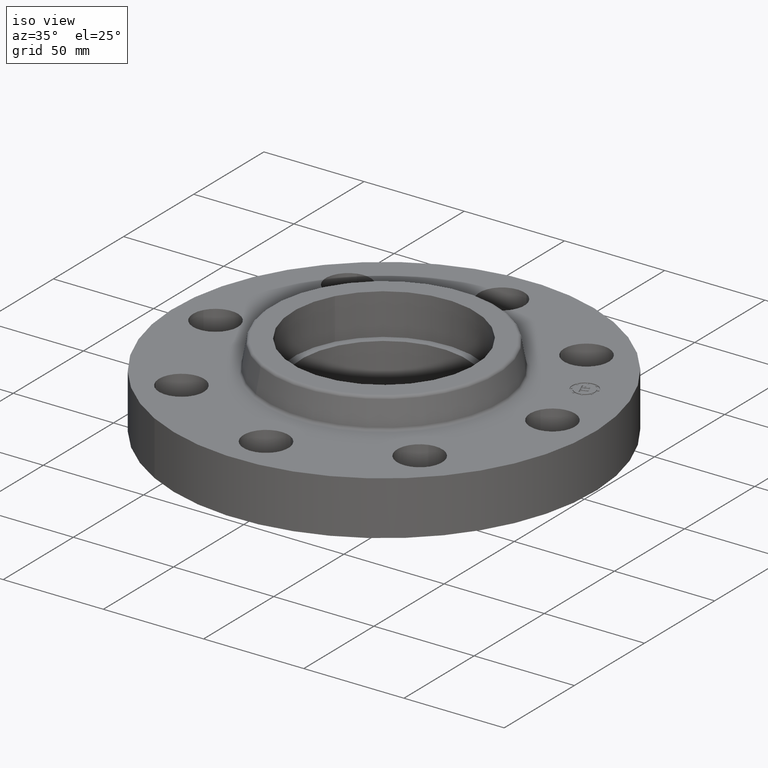
[diagram: clean part render]
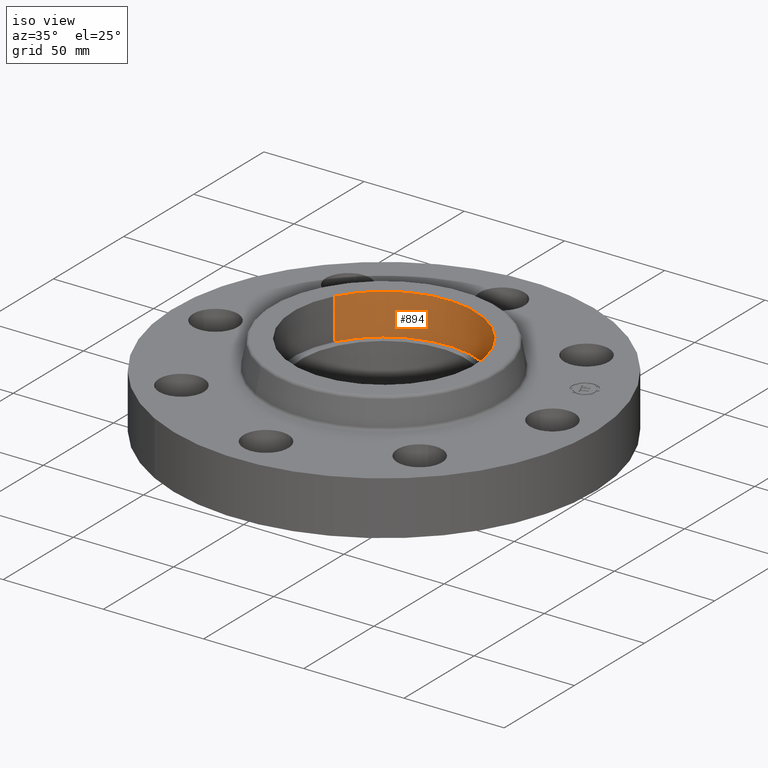
[diagram: same view with one face highlighted and labeled with its STEP entity id]
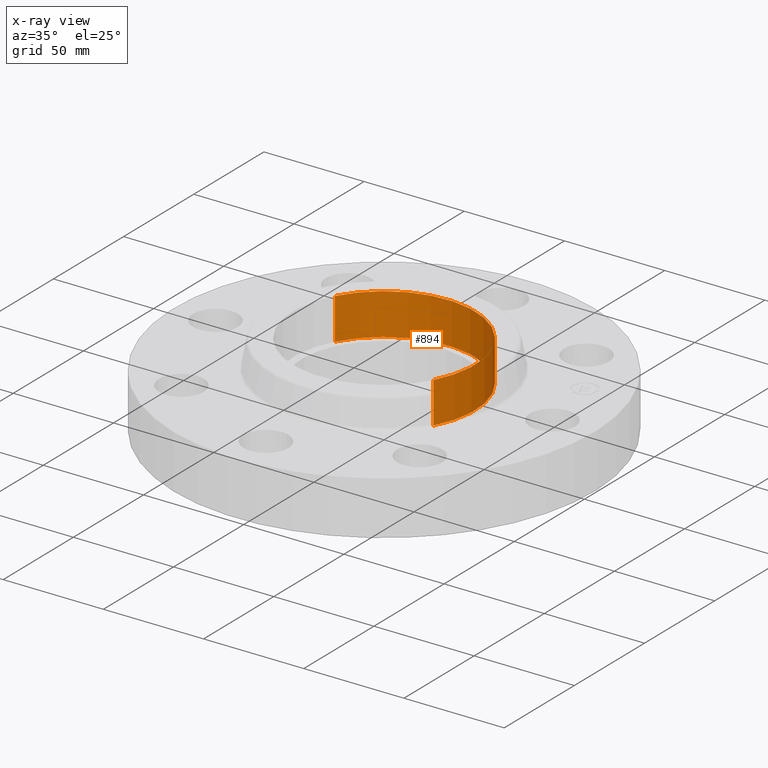
[diagram: x-ray of the same camera — body ghosted, the highlighted face saturated]
A machine part, iso view. The second image highlights one B-rep face of the part: STEP entity #894.
The next image is the same camera in x-ray: the body ghosted, the highlighted face saturated — about 0% of this face is hidden behind the body in this view.
In plain terms, the highlighted cylindrical surface (partial cylindrical patch) has radius 45.339 mm, axis along (0, 0, -1).
Its self-contained STEP definition (entity closure, byte-faithful):
#42=AXIS2_PLACEMENT_3D('Circle Axis2P3D',#40,#41,$) ;
#512=AXIS2_PLACEMENT_3D('Circle Axis2P3D',#510,#511,$) ;
#876=AXIS2_PLACEMENT_3D('Cylinder Axis2P3D',#873,#874,#875) ;
#40=CARTESIAN_POINT('Axis2P3D Location',(0.,-6.99353086378E-017,0.820000000003)) ;
#44=CARTESIAN_POINT('Vertex',(-1.56648487298,0.855774586412,0.820000000003)) ;
#46=CARTESIAN_POINT('Vertex',(1.56648487298,-0.855774586412,0.820000000003)) ;
#510=CARTESIAN_POINT('Axis2P3D Location',(1.39870617276E-016,-2.79741234551E-016,1.63000000001)) ;
#514=CARTESIAN_POINT('Vertex',(-1.56648487298,0.855774586412,1.63000000001)) ;
#516=CARTESIAN_POINT('Vertex',(1.56648487298,-0.855774586412,1.63000000001)) ;
#873=CARTESIAN_POINT('Axis2P3D Location',(0.,-6.99353086378E-017,1.62606299213)) ;
#878=CARTESIAN_POINT('Line Origine',(-1.56648487298,0.855774586412,1.225)) ;
#883=CARTESIAN_POINT('Line Origine',(1.56648487298,-0.855774586412,1.225)) ;
#41=DIRECTION('Axis2P3D Direction',(0.,0.,-0.0393700787402)) ;
#511=DIRECTION('Axis2P3D Direction',(0.,0.,-0.0393700787402)) ;
#874=DIRECTION('Axis2P3D Direction',(0.,0.,-0.0393700787402)) ;
#875=DIRECTION('Axis2P3D XDirection',(0.0345504945626,-0.0188750212049,0.)) ;
#879=DIRECTION('Vector Direction',(0.,0.,-0.0393700787402)) ;
#884=DIRECTION('Vector Direction',(0.,0.,-0.0393700787402)) ;
#880=VECTOR('Line Direction',#879,0.0393700787402) ;
#885=VECTOR('Line Direction',#884,0.0393700787402) ;
#889=ORIENTED_EDGE('',*,*,#518,.F.) ;
#890=ORIENTED_EDGE('',*,*,#882,.F.) ;
#891=ORIENTED_EDGE('',*,*,#48,.T.) ;
#892=ORIENTED_EDGE('',*,*,#887,.T.) ;
#894=ADVANCED_FACE('PartBody',(#893),#877,.F.) ;
#43=CIRCLE('generated circle',#42,1.78500000001) ;
#513=CIRCLE('generated circle',#512,1.78500000001) ;
#877=CYLINDRICAL_SURFACE('generated cylinder',#876,1.78500000001) ;
#48=EDGE_CURVE('',#45,#47,#43,.T.) ;
#518=EDGE_CURVE('',#515,#517,#513,.T.) ;
#882=EDGE_CURVE('',#45,#515,#881,.F.) ;
#887=EDGE_CURVE('',#47,#517,#886,.F.) ;
#888=EDGE_LOOP('',(#889,#890,#891,#892)) ;
#893=FACE_OUTER_BOUND('',#888,.T.) ;
#881=LINE('Line',#878,#880) ;
#886=LINE('Line',#883,#885) ;
#45=VERTEX_POINT('',#44) ;
#47=VERTEX_POINT('',#46) ;
#515=VERTEX_POINT('',#514) ;
#517=VERTEX_POINT('',#516) ;